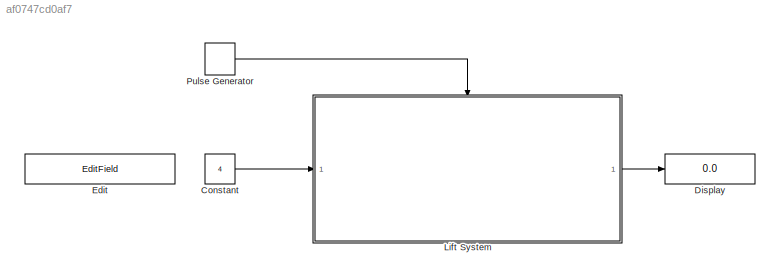
MODEL slx_af0747cd0af7
KIND model
CONFIG AbsTol = auto
CONFIG EnableMultiTasking = off
CONFIG FixedStep = auto
CONFIG MaxStep = auto
CONFIG MinStep = auto
CONFIG RelTol = 1e-3
CONFIG SampleTimeConstraint = Unconstrained
CONFIG Solver = VariableStepAuto
CONFIG SolverName = VariableStepAuto
CONFIG StartTime = 0.0
CONFIG StopTime = 10.0
BLOCK [Constant] Constant
  Value = 4
BLOCK [Display] Display
  Decimation = 1
  Ports = [1]
BLOCK [EditField] Edit
  Alignment = Center
  LabelPosition = Bottom
  ShowInitialText = on
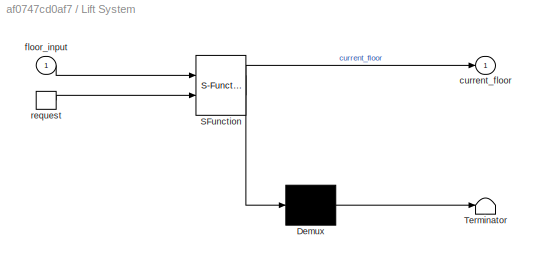
BLOCK [SubSystem] Lift System
  ErrorFcn = Stateflow.Translate.translate
  PermitHierarchicalResolution = ExplicitOnly
  Ports = [1, 1, 0, 1]
  RequestExecContextInheritance = off
  SFBlockType = Chart
  TreatAsAtomicUnit = on
BLOCK [Demux] Lift System/ Demux 
  Outputs = 1
  Ports = [1, 1]
BLOCK [S-Function] Lift System/ SFunction 
  EnableBusSupport = on
  FunctionName = sf_sfun
  PortCounts = [2 2]
  Ports = [2, 2]
  SFcnIsStateOwnerBlock = off
  SFunctionDeploymentMode = off
  Tag = Stateflow S-Function 1
BLOCK [Terminator] Lift System/ Terminator 
BLOCK [Outport] Lift System/current_floor
BLOCK [Inport] Lift System/floor_input
BLOCK [TriggerPort] Lift System/request
  Ports = [0, 1]
  ShowOutputPort = on
  StatesWhenEnabling = held
  VariantControl = (inherit)
BLOCK [DiscretePulseGenerator] Pulse Generator
  Period = 1
  Ports = [0, 1]
  PulseType = Time based
  PulseWidth = 25
LINE Constant:1 -> Lift System:1
LINE Lift System:1 -> Display:1
LINE Pulse Generator:1 -> Lift System:trigger
CHART Lift System states=12 transitions=46
  STATE_LABEL 'Idle'
  STATE_LABEL 'PrepareLift\nentry:\ndoor_close = 1;\n'
  STATE_LABEL 'Active\n'
  STATE_LABEL 'LiftAction'
  STATE_LABEL 'Floor1\nentry:\ncurrent_floor = 1;'
  STATE_LABEL '[current_floor == floor_input]'
  STATE_LABEL '{door_close = 0;}/{Delay.count}'
  STATE_LABEL 'Floor2\nentry:\ncurrent_floor = 2;'
  STATE_LABEL '[current_floor == floor_input]'
  STATE_LABEL '{door_close = 0;}/{Delay.count}'
  STATE_LABEL 'Floor3\nentry:\ncurrent_floor = 3;'
  STATE_LABEL '[current_floor == floor_input]'
  STATE_LABEL '{door_close = 0;}/{Delay.count}'
  STATE_LABEL 'Floor4\nentry:\ncurrent_floor = 4;'
  STATE_LABEL '[current_floor == floor_input]'
  STATE_LABEL '{door_close = 0;}/{Delay.count}'
  STATE_LABEL 'Floor5\nentry:\ncurrent_floor = 5;'
  STATE_LABEL '[current_floor == floor_input]'
  STATE_LABEL '{door_close = 0;}/{Delay.count}'
  STATE_LABEL '[floor_input>current_floor]'
  STATE_LABEL '[floor_input<current_floor]'
  STATE_LABEL '[floor_input>current_floor]'
  STATE_LABEL '[floor_input<current_floor]'
  STATE_LABEL '[floor_input>current_floor]'
  STATE_LABEL '[floor_input<current_floor]'
  STATE_LABEL '[floor_input>current_floor]'
  STATE_LABEL '[floor_input<current_floor]'
  STATE_LABEL 'Delay'
  STATE_LABEL 'Init\nen: i = 0;\n'
  STATE_LABEL 'Wait\ndu:\ni = i+1;'
  STATE_LABEL '[i>=5]{door_close=1;}'
  STATE_LABEL 'count'
  STATE_LABEL 'LiftAction'
  STATE_LABEL 'Floor1\nentry:\ncurrent_floor = 1;'
  STATE_LABEL '[current_floor == floor_input]'
  STATE_LABEL '{door_close = 0;}/{Delay.count}'
  STATE_LABEL 'Floor2\nentry:\ncurrent_floor = 2;'
  STATE_LABEL '[current_floor == floor_input]'
  STATE_LABEL '{door_close = 0;}/{Delay.count}'
  STATE_LABEL 'Floor3\nentry:\ncurrent_floor = 3;'
CHART  states=0 transitions=0
